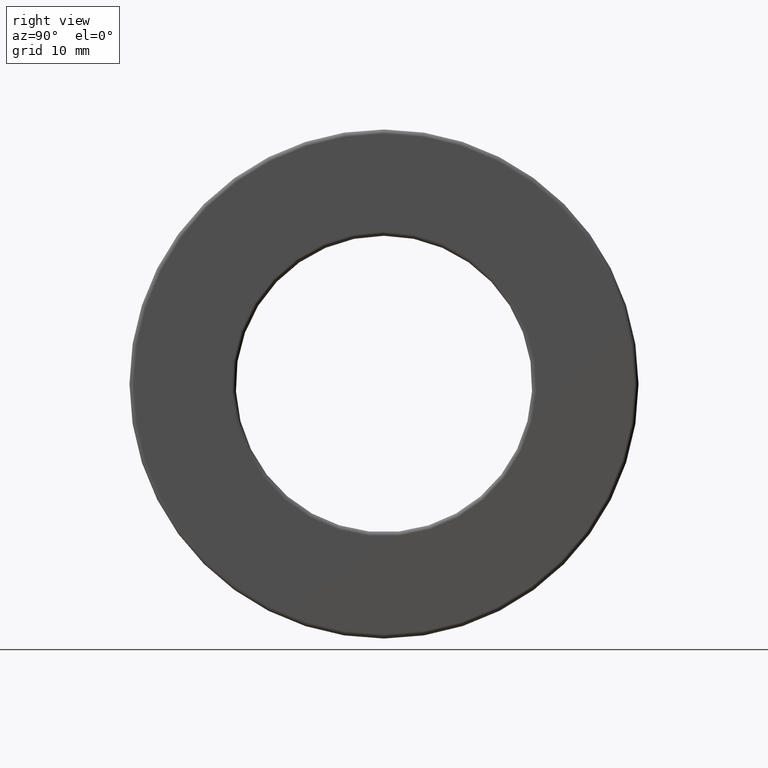
[diagram: clean part render]
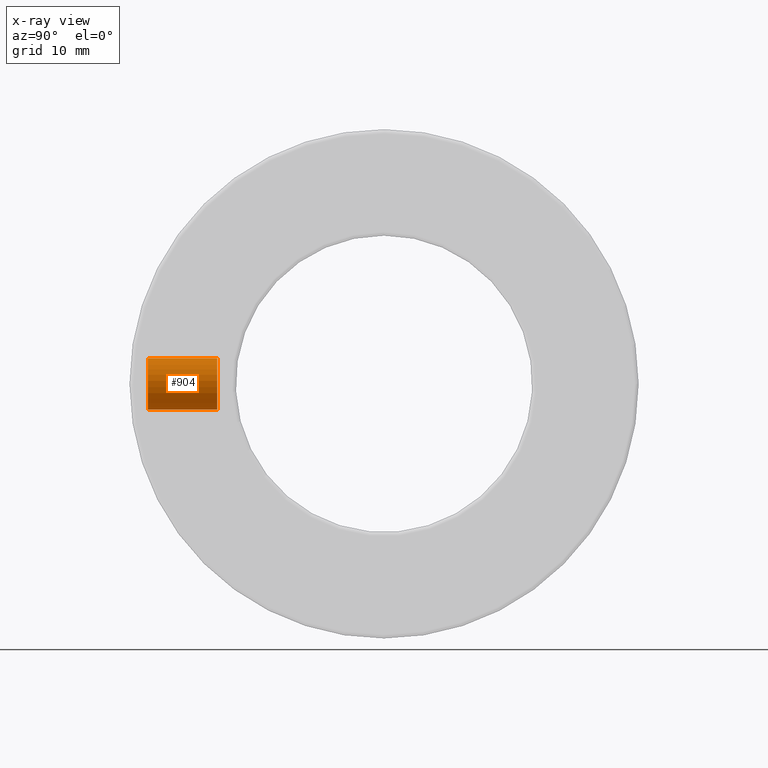
[diagram: x-ray — body ghosted, one internal face saturated and labeled with its STEP entity id]
A machine part, right view, then the same camera in x-ray: the body is ghosted and one INTERNAL B-rep face — a face not visible from any outside direction — is saturated and labeled: STEP entity #904.
In plain terms, the highlighted cylindrical surface (bore or boss wall) has radius 3.175 mm, axis along (0, -1, 0).
Its self-contained STEP definition (entity closure, byte-faithful):
#155 = CARTESIAN_POINT ( 'NONE',  ( 0.0000000000000000000, -0.8087500000000000800, 0.0000000000000000000 ) ) ;
#339 = FACE_OUTER_BOUND ( 'NONE', #1091, .T. ) ;
#409 = FACE_OUTER_BOUND ( 'NONE', #645, .T. ) ;
#446 = CARTESIAN_POINT ( 'NONE',  ( 0.0000000000000000000, -0.8087500000000000800, -0.1250000000000000300 ) ) ;
#476 = AXIS2_PLACEMENT_3D ( 'NONE', #1096, #1202, #661 ) ;
#480 = DIRECTION ( 'NONE',  ( 0.0000000000000000000, -1.000000000000000000, 0.0000000000000000000 ) ) ;
#502 = AXIS2_PLACEMENT_3D ( 'NONE', #155, #480, #961 ) ;
#531 = ORIENTED_EDGE ( 'NONE', *, *, #1123, .T. ) ;
#573 = CARTESIAN_POINT ( 'NONE',  ( 0.0000000000000000000, -1.144374999999999700, 0.0000000000000000000 ) ) ;
#585 = CARTESIAN_POINT ( 'NONE',  ( 0.0000000000000000000, -1.144374999999999700, -0.1249999999999999300 ) ) ;
#586 = ORIENTED_EDGE ( 'NONE', *, *, #1391, .F. ) ;
#645 = EDGE_LOOP ( 'NONE', ( #586 ) ) ;
#656 = VERTEX_POINT ( 'NONE', #446 ) ;
#661 = DIRECTION ( 'NONE',  ( 0.0000000000000000000, 0.0000000000000000000, -1.000000000000000000 ) ) ;
#904 = ADVANCED_FACE ( 'NONE', ( #339, #409 ), #949, .T. ) ;
#949 = CYLINDRICAL_SURFACE ( 'NONE', #476, 0.1249999999999999900 ) ;
#957 = VERTEX_POINT ( 'NONE', #585 ) ;
#961 = DIRECTION ( 'NONE',  ( 0.0000000000000000000, 0.0000000000000000000, -1.000000000000000000 ) ) ;
#1007 = AXIS2_PLACEMENT_3D ( 'NONE', #573, #1246, #1356 ) ;
#1065 = CIRCLE ( 'NONE', #502, 0.1250000000000000300 ) ;
#1091 = EDGE_LOOP ( 'NONE', ( #531 ) ) ;
#1096 = CARTESIAN_POINT ( 'NONE',  ( 0.0000000000000000000, 0.0000000000000000000, 0.0000000000000000000 ) ) ;
#1123 = EDGE_CURVE ( 'NONE', #656, #656, #1065, .T. ) ;
#1202 = DIRECTION ( 'NONE',  ( 0.0000000000000000000, -1.000000000000000000, 0.0000000000000000000 ) ) ;
#1246 = DIRECTION ( 'NONE',  ( 0.0000000000000000000, -1.000000000000000000, 0.0000000000000000000 ) ) ;
#1356 = DIRECTION ( 'NONE',  ( 0.0000000000000000000, 0.0000000000000000000, -1.000000000000000000 ) ) ;
#1391 = EDGE_CURVE ( 'NONE', #957, #957, #1452, .T. ) ;
#1452 = CIRCLE ( 'NONE', #1007, 0.1249999999999999300 ) ;